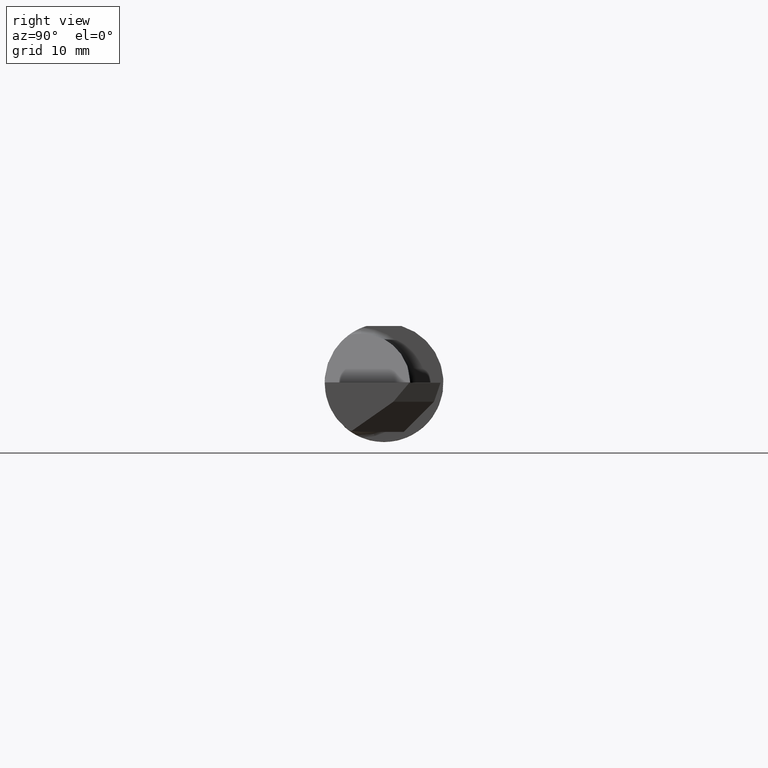
[diagram: clean part render]
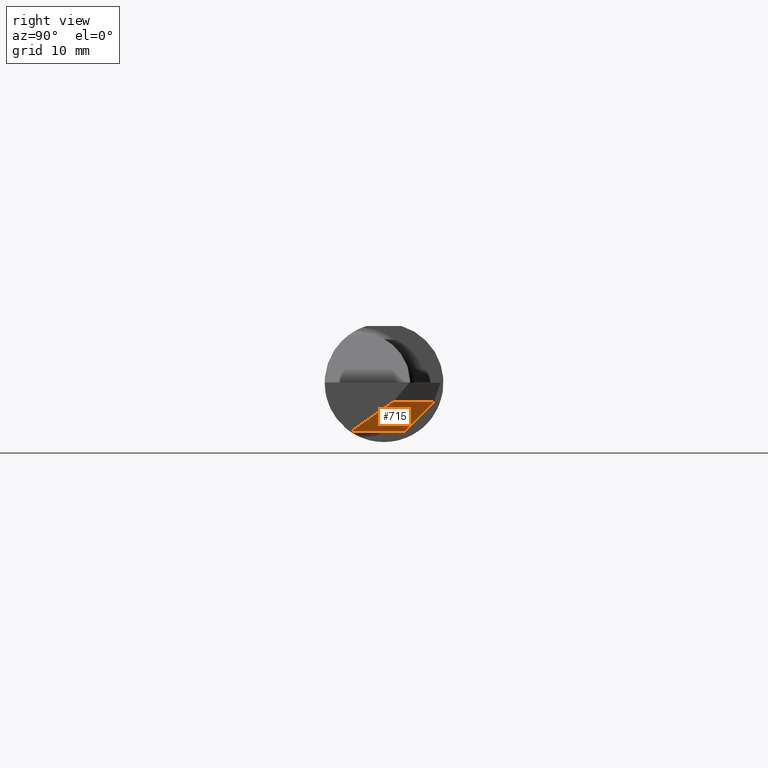
[diagram: same view with one face highlighted and labeled with its STEP entity id]
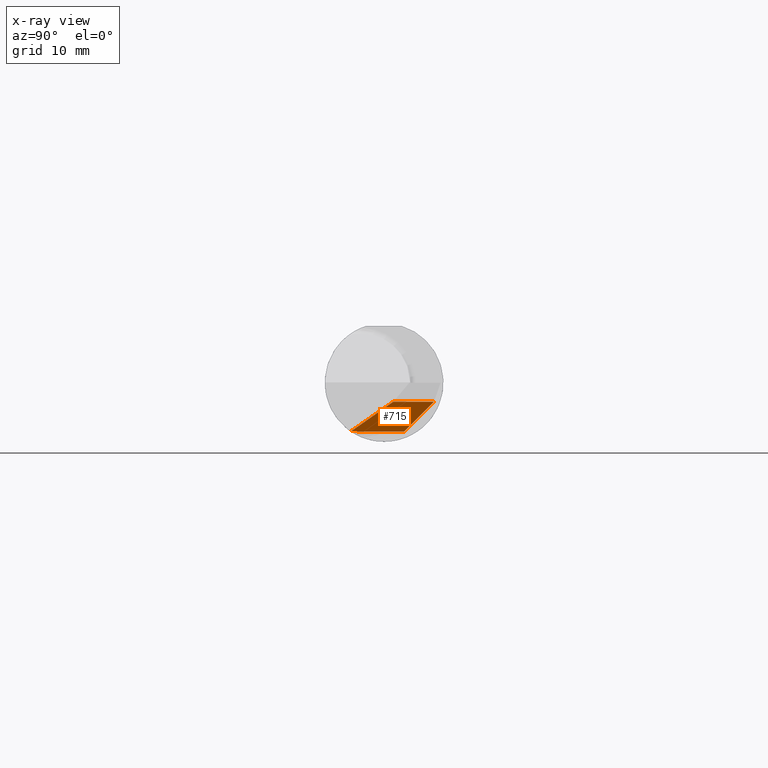
[diagram: x-ray of the same camera — body ghosted, the highlighted face saturated]
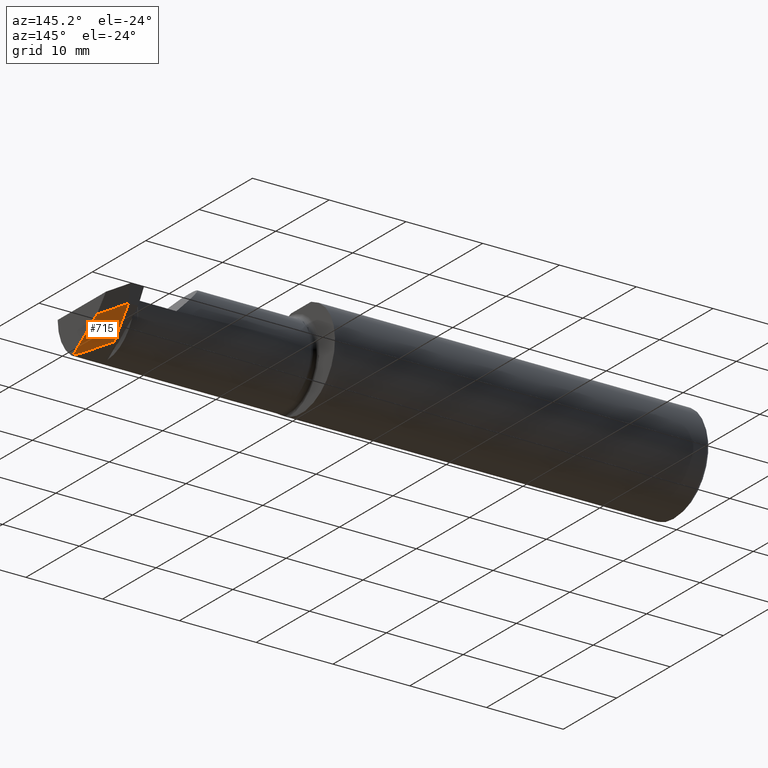
[diagram: same view with one face highlighted and labeled with its STEP entity id]
A machine part, right view. The second image highlights one B-rep face of the part: STEP entity #715.
The next image is the same camera in x-ray: the body ghosted, the highlighted face saturated — about 0% of this face is hidden behind the body in this view.
A second angle (auxiliary view) of the same face is appended — the face is thin or edge-on in the first view.
In plain terms, the highlighted planar face has unit normal (0.9116, 0.2358, -0.3367).
Its self-contained STEP definition (entity closure, byte-faithful):
#6 = CARTESIAN_POINT ( 'NONE',  ( 2.795463962035230399, 0.8304646351436215657, -0.07999999999994880651 ) ) ;
#17 = CARTESIAN_POINT ( 'NONE',  ( 2.988377121087915977, -0.09685000000000003328, -0.2069999999999999341 ) ) ;
#18 = VERTEX_POINT ( 'NONE', #688 ) ;
#82 = VECTOR ( 'NONE', #368, 39.37007874015748143 ) ;
#96 = CARTESIAN_POINT ( 'NONE',  ( 2.991809236970782049, -0.1101210074274882600, -0.2069999999999999618 ) ) ;
#182 = ORIENTED_EDGE ( 'NONE', *, *, #257, .F. ) ;
#184 = ORIENTED_EDGE ( 'NONE', *, *, #382, .F. ) ;
#245 = LINE ( 'NONE', #281, #790 ) ;
#257 = EDGE_CURVE ( 'NONE', #756, #519, #634, .T. ) ;
#281 = CARTESIAN_POINT ( 'NONE',  ( 3.000000000000000444, 0.05060993510442526183, -0.07227847794073193055 ) ) ;
#287 = EDGE_CURVE ( 'NONE', #756, #689, #748, .T. ) ;
#296 = CARTESIAN_POINT ( 'NONE',  ( 2.988377121087915977, -0.09685000000000003328, -0.2069999999999999341 ) ) ;
#306 = EDGE_CURVE ( 'NONE', #689, #18, #671, .T. ) ;
#346 = VECTOR ( 'NONE', #531, 39.37007874015748854 ) ;
#353 = CARTESIAN_POINT ( 'NONE',  ( 3.000000000000000444, -0.1363579360798492235, -0.2031947907469837944 ) ) ;
#359 = FACE_OUTER_BOUND ( 'NONE', #593, .T. ) ;
#368 = DIRECTION ( 'NONE',  ( -0.2503800040544219563, 0.9681476403781128504, 5.650365557287442810E-14 ) ) ;
#382 = EDGE_CURVE ( 'NONE', #519, #709, #245, .T. ) ;
#385 = ORIENTED_EDGE ( 'NONE', *, *, #287, .T. ) ;
#386 = CARTESIAN_POINT ( 'NONE',  ( 2.963839195668922066, 0.2834708276858486919, -0.007132963250968961735 ) ) ;
#425 = VECTOR ( 'NONE', #815, 39.37007874015748854 ) ;
#439 = CARTESIAN_POINT ( 'NONE',  ( 2.941708597587972207, 0.08360379093681981344, -0.2070000000000000728 ) ) ;
#474 = ORIENTED_EDGE ( 'NONE', *, *, #306, .T. ) ;
#519 = VERTEX_POINT ( 'NONE', #353 ) ;
#531 = DIRECTION ( 'NONE',  ( -0.2503800040544417183, 0.9681476403781076323, -5.547658068578872458E-16 ) ) ;
#534 = CARTESIAN_POINT ( 'NONE',  ( 2.931712946219820815, 0.1222541069740939734, -0.2070000000000000728 ) ) ;
#562 = EDGE_CURVE ( 'NONE', #709, #18, #574, .T. ) ;
#574 = LINE ( 'NONE', #6, #82 ) ;
#593 = EDGE_LOOP ( 'NONE', ( #182, #385, #474, #659, #184 ) ) ;
#634 =( BOUNDED_CURVE ( )  B_SPLINE_CURVE ( 3, ( #17, #96, #823, #673 ),
 .UNSPECIFIED., .F., .F. ) 
 B_SPLINE_CURVE_WITH_KNOTS ( ( 4, 4 ),
 ( 0.6108652381980214097, 0.8029030024377743491 ),
 .UNSPECIFIED. ) 
 CURVE ( )  GEOMETRIC_REPRESENTATION_ITEM ( )  RATIONAL_B_SPLINE_CURVE ( ( 1.000000000000000000, 0.9969291518527066964, 0.9969291518527066964, 1.000000000000000000 ) ) 
 REPRESENTATION_ITEM ( '' )  );
#659 = ORIENTED_EDGE ( 'NONE', *, *, #562, .F. ) ;
#663 = CARTESIAN_POINT ( 'NONE',  ( 2.935081469452308855, 0.8665721776455905800, 0.3232974061439788938 ) ) ;
#671 = LINE ( 'NONE', #386, #425 ) ;
#673 = CARTESIAN_POINT ( 'NONE',  ( 3.000000000000000444, -0.1363579360798492235, -0.2031947907469837944 ) ) ;
#678 = DIRECTION ( 'NONE',  ( -0.000000000000000000, 0.8191520442889890230, 0.5735764363510502672 ) ) ;
#688 = CARTESIAN_POINT ( 'NONE',  ( 2.955770876200779274, 0.2106037909368334293, -0.07999999999998498590 ) ) ;
#689 = VERTEX_POINT ( 'NONE', #439 ) ;
#709 = VERTEX_POINT ( 'NONE', #727 ) ;
#715 = ADVANCED_FACE ( 'NONE', ( #359 ), #942, .T. ) ;
#727 = CARTESIAN_POINT ( 'NONE',  ( 3.000000000000000444, 0.03958245876647417671, -0.07999999999999496403 ) ) ;
#733 = DIRECTION ( 'NONE',  ( -0.3464677099351593514, 0.000000000000000000, -0.9380618987957490829 ) ) ;
#748 = LINE ( 'NONE', #534, #346 ) ;
#756 = VERTEX_POINT ( 'NONE', #296 ) ;
#790 = VECTOR ( 'NONE', #678, 39.37007874015748143 ) ;
#815 = DIRECTION ( 'NONE',  ( 0.07805664651022324596, 0.7049493456751225740, 0.7049493456751304565 ) ) ;
#823 = CARTESIAN_POINT ( 'NONE',  ( 2.995695463954408222, -0.1233308849821192071, -0.2057276898443771151 ) ) ;
#845 = AXIS2_PLACEMENT_3D ( 'NONE', #663, #871, #733 ) ;
#871 = DIRECTION ( 'NONE',  ( 0.9116190025285800802, 0.2357607042868677394, -0.3367011798954036017 ) ) ;
#942 = PLANE ( 'NONE',  #845 ) ;